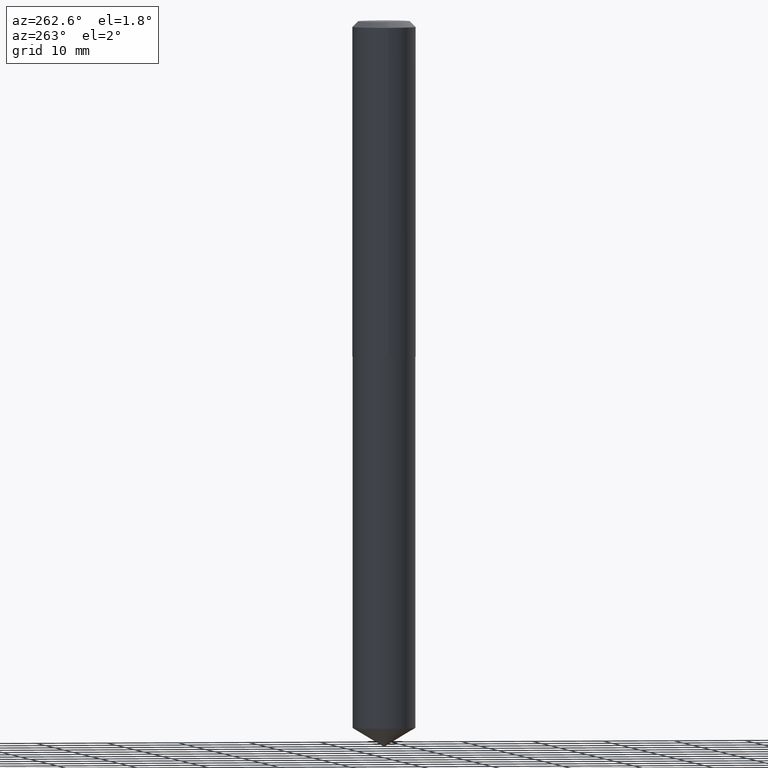
[diagram: clean part render]
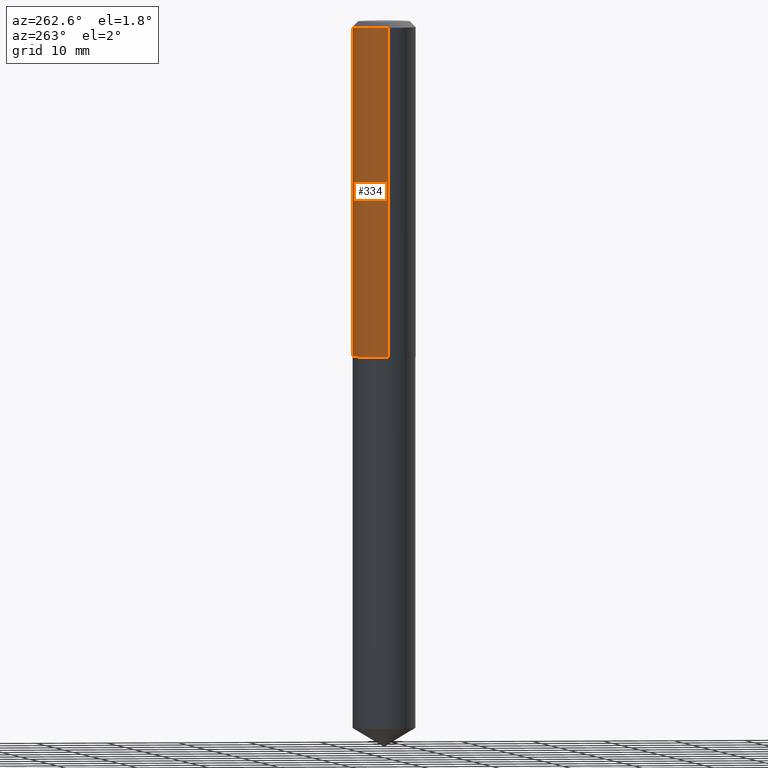
[diagram: same view with one face highlighted and labeled with its STEP entity id]
A machine part, auxiliary view. The second image highlights one B-rep face of the part: STEP entity #334.
In plain terms, the highlighted cylindrical surface (edge-blend (fillet) strip) has radius 4.4196 mm, axis along (-0, 0, 1).
Its self-contained STEP definition (entity closure, byte-faithful):
#5 = VERTEX_POINT ( 'NONE', #163 ) ;
#20 = DIRECTION ( 'NONE',  ( -2.445468806185136597E-29, 3.491481338843145583E-15, 1.000000000000000000 ) ) ;
#36 = EDGE_CURVE ( 'NONE', #359, #5, #292, .T. ) ;
#55 = ORIENTED_EDGE ( 'NONE', *, *, #321, .F. ) ;
#64 = VECTOR ( 'NONE', #121, 39.37007874015748143 ) ;
#77 = DIRECTION ( 'NONE',  ( 1.000000000000000000, -6.982962677686269077E-15, 0.000000000000000000 ) ) ;
#100 = AXIS2_PLACEMENT_3D ( 'NONE', #271, #299, #131 ) ;
#106 = ORIENTED_EDGE ( 'NONE', *, *, #124, .T. ) ;
#107 = VECTOR ( 'NONE', #379, 39.37007874015748143 ) ;
#109 = CARTESIAN_POINT ( 'NONE',  ( 4.518003619427039369E-29, -6.450511773512711278E-15, -1.847499999999999920 ) ) ;
#120 = CARTESIAN_POINT ( 'NONE',  ( -0.1740000000000000990, 1.236344360222575027E-15, -8.558947057043541363E-30 ) ) ;
#121 = DIRECTION ( 'NONE',  ( -2.445468806185136877E-29, 3.491481338843145188E-15, 1.000000000000000000 ) ) ;
#124 = EDGE_CURVE ( 'NONE', #5, #215, #258, .T. ) ;
#127 = CARTESIAN_POINT ( 'NONE',  ( 7.642090019328602662E-31, -1.091087918388490267E-16, -0.03125000000000020817 ) ) ;
#131 = DIRECTION ( 'NONE',  ( 1.000000000000000000, -6.982962677686267499E-15, 4.876176775795936914E-29 ) ) ;
#160 = FACE_OUTER_BOUND ( 'NONE', #354, .T. ) ;
#163 = CARTESIAN_POINT ( 'NONE',  ( -0.1740000000000002101, -5.214167413290135067E-15, -1.847499999999999920 ) ) ;
#171 = CARTESIAN_POINT ( 'NONE',  ( 0.1740000000000000990, -1.215035505917411252E-15, 8.484547589884934838E-30 ) ) ;
#194 = CIRCLE ( 'NONE', #224, 0.1739999999999999880 ) ;
#215 = VERTEX_POINT ( 'NONE', #342 ) ;
#218 = VERTEX_POINT ( 'NONE', #255 ) ;
#224 = AXIS2_PLACEMENT_3D ( 'NONE', #127, #20, #326 ) ;
#235 = LINE ( 'NONE', #171, #107 ) ;
#238 = ORIENTED_EDGE ( 'NONE', *, *, #363, .F. ) ;
#242 = DIRECTION ( 'NONE',  ( -2.445468806185136597E-29, 3.491481338843145583E-15, 1.000000000000000000 ) ) ;
#255 = CARTESIAN_POINT ( 'NONE',  ( 0.1739999999999999880, -1.324144297756259366E-15, -0.03125000000000020817 ) ) ;
#258 = LINE ( 'NONE', #120, #64 ) ;
#271 = CARTESIAN_POINT ( 'NONE',  ( 0.000000000000000000, 0.000000000000000000, 0.000000000000000000 ) ) ;
#274 = CARTESIAN_POINT ( 'NONE',  ( 0.1740000000000002101, -7.665547279430124304E-15, -1.847499999999999920 ) ) ;
#292 = CIRCLE ( 'NONE', #305, 0.1740000000000002101 ) ;
#299 = DIRECTION ( 'NONE',  ( -2.445468806185136597E-29, 3.491481338843145583E-15, 1.000000000000000000 ) ) ;
#305 = AXIS2_PLACEMENT_3D ( 'NONE', #109, #242, #77 ) ;
#321 = EDGE_CURVE ( 'NONE', #218, #215, #194, .T. ) ;
#326 = DIRECTION ( 'NONE',  ( 1.000000000000000000, -6.982962677686266711E-15, 0.000000000000000000 ) ) ;
#331 = CYLINDRICAL_SURFACE ( 'NONE', #100, 0.1740000000000000990 ) ;
#334 = ADVANCED_FACE ( 'NONE', ( #160 ), #331, .T. ) ;
#342 = CARTESIAN_POINT ( 'NONE',  ( -0.1739999999999999880, -2.043465922453203979E-15, -0.03125000000000020817 ) ) ;
#354 = EDGE_LOOP ( 'NONE', ( #365, #106, #55, #238 ) ) ;
#359 = VERTEX_POINT ( 'NONE', #274 ) ;
#363 = EDGE_CURVE ( 'NONE', #359, #218, #235, .T. ) ;
#365 = ORIENTED_EDGE ( 'NONE', *, *, #36, .T. ) ;
#379 = DIRECTION ( 'NONE',  ( -2.445468806185136877E-29, 3.491481338843145188E-15, 1.000000000000000000 ) ) ;